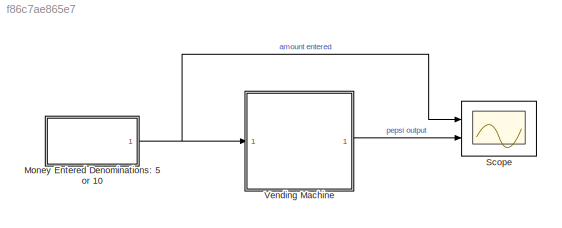
MODEL slx_f86c7ae865e7
KIND model
CONFIG AbsTol = auto
CONFIG EnableMultiTasking = off
CONFIG FixedStep = 1
CONFIG MaxStep = auto
CONFIG MinStep = auto
CONFIG RelTol = 1e-3
CONFIG SampleTimeConstraint = Unconstrained
CONFIG Solver = FixedStepAuto
CONFIG SolverName = FixedStepAuto
CONFIG StartTime = 0.0
CONFIG StopTime = 20.0
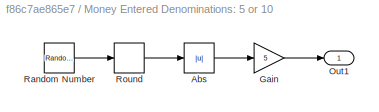
BLOCK [SubSystem] Money Entered Denominations: 5 or 10
  Ports = [0, 1]
  RequestExecContextInheritance = off
BLOCK [Abs] Money Entered Denominations: 5 or 10/Abs
  SaturateOnIntegerOverflow = off
BLOCK [Gain] Money Entered Denominations: 5 or 10/Gain
  Gain = 5
BLOCK [Outport] Money Entered Denominations: 5 or 10/Out1
BLOCK [RandomNumber] Money Entered Denominations: 5 or 10/Random Number
  SampleTime = 1
BLOCK [Rounding] Money Entered Denominations: 5 or 10/Round
  Operator = round
BLOCK [Scope] Scope
  Floating = off
  NumInputPorts = 2
  Ports = [2]
  ScopeSpecificationString = Simulink.scopes.TimeScopeBlockCfg('CurrentConfiguration', extmgr.ConfigurationSet(extmgr.Configuration('Core','General UI',true),extmgr.Configuration('Core','Source UI',true),extmgr.Configuration('Sources','WiredSimulink',true),extmgr.Configuration('Visuals','Time Domain',true,'SerializedDisplays',{struct('MinYLimReal','-1.25','MaxYLimReal','11.25','YLabelReal','','MinYLimMag','0.00000','MaxYLimMa...<+1948ch>
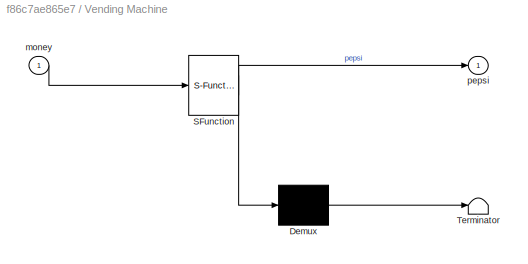
BLOCK [SubSystem] Vending Machine
  ErrorFcn = Stateflow.Translate.translate
  PermitHierarchicalResolution = ExplicitOnly
  Ports = [1, 1]
  RequestExecContextInheritance = off
  SFBlockType = Chart
  TreatAsAtomicUnit = on
BLOCK [Demux] Vending Machine/ Demux 
  Outputs = 1
  Ports = [1, 1]
BLOCK [S-Function] Vending Machine/ SFunction 
  EnableBusSupport = on
  FunctionName = sf_sfun
  PortCounts = [1 2]
  Ports = [1, 2]
  SFcnIsStateOwnerBlock = off
  SFunctionDeploymentMode = off
  Tag = Stateflow S-Function 3
BLOCK [Terminator] Vending Machine/ Terminator 
BLOCK [Inport] Vending Machine/money
BLOCK [Outport] Vending Machine/pepsi
LINE Money Entered Denominations: 5 or 10/Abs:1 -> Money Entered Denominations: 5 or 10/Gain:1
LINE Money Entered Denominations: 5 or 10/Gain:1 -> Money Entered Denominations: 5 or 10/Out1:1
LINE Money Entered Denominations: 5 or 10/Random Number:1 -> Money Entered Denominations: 5 or 10/Round:1
LINE Money Entered Denominations: 5 or 10/Round:1 -> Money Entered Denominations: 5 or 10/Abs:1
NET Money Entered Denominations: 5 or 10:1 -> Scope:1, Vending Machine:1
LINE Vending Machine:1 -> Scope:2
note: NET lines group one-source signal fan-out (src -> all destinations, sorted); 1:1 wires keep LINE
CHART Vending Machine states=3 transitions=7
  STATE_LABEL 'zero_in_machine'
  STATE_LABEL 'five_in_machine'
  STATE_LABEL 'ten_in_machine'
CHART  states=0 transitions=0
